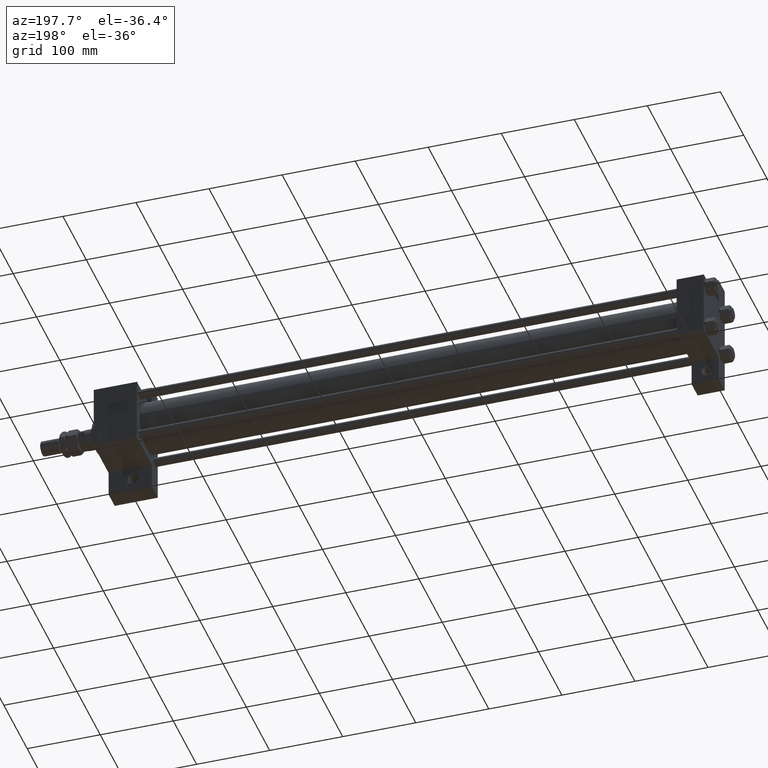
[diagram: clean part render]
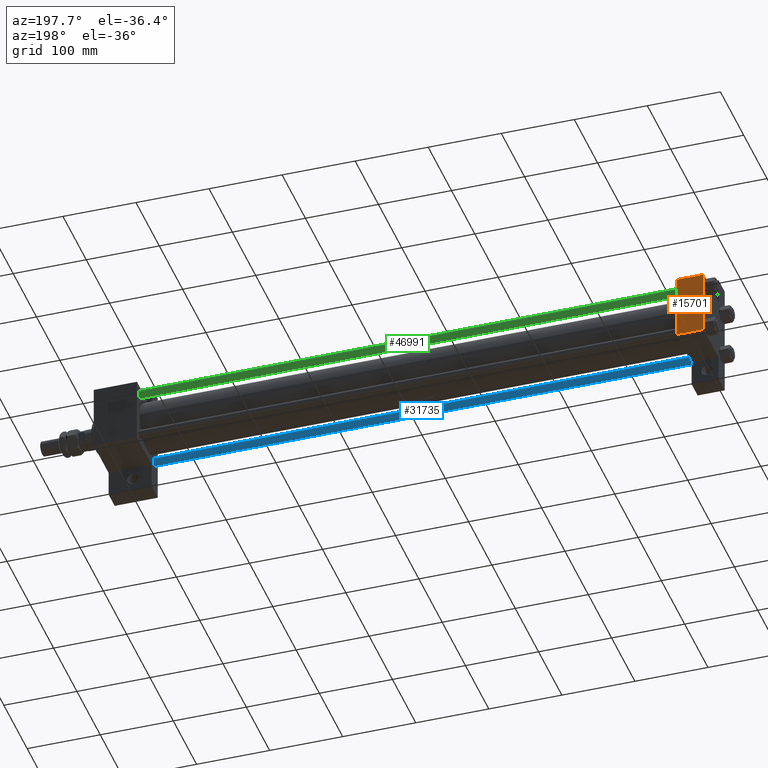
[diagram: same view with three faces highlighted in distinct colors, each labeled with its STEP entity id]
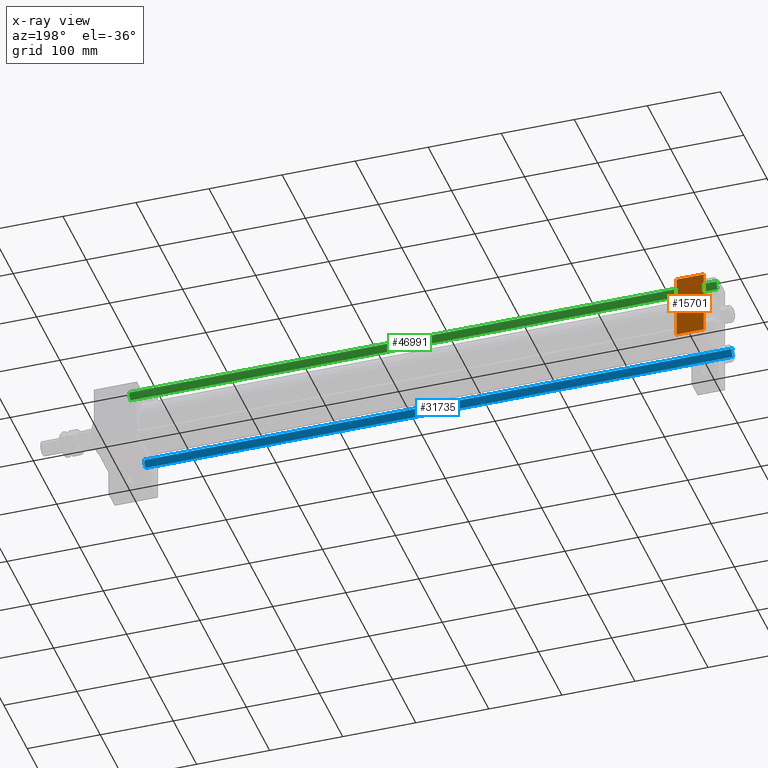
[diagram: x-ray of the same camera — body ghosted, the three highlighted faces saturated]
A machine part, auxiliary view with three faces highlighted in distinct colors.
The next image is the same camera in x-ray (body ghosted, the three faces saturated) — at least one of them is partly hidden behind the body in this view.
Their STEP definitions:

[orange] entity #15701 — the highlighted planar face has unit normal (0, -1, -0).
#525 = ORIENTED_EDGE ( 'NONE', *, *, #26779, .F. ) ;
#561 = CARTESIAN_POINT ( 'NONE',  ( 0.000000000000000000, 44.99999999999998579, 45.00000000000001421 ) ) ;
#1199 = VECTOR ( 'NONE', #39959, 1000.000000000000000 ) ;
#3971 = VERTEX_POINT ( 'NONE', #26371 ) ;
#5765 = FACE_OUTER_BOUND ( 'NONE', #25458, .T. ) ;
#5962 = DIRECTION ( 'NONE',  ( 0.000000000000000000, -1.000000000000000000, -1.541976423090495387E-16 ) ) ;
#7017 = VERTEX_POINT ( 'NONE', #43630 ) ;
#7276 = VERTEX_POINT ( 'NONE', #12644 ) ;
#11467 = ORIENTED_EDGE ( 'NONE', *, *, #21764, .T. ) ;
#12644 = CARTESIAN_POINT ( 'NONE',  ( 37.00000000000000000, 44.49999999999998579, 45.00000000000001421 ) ) ;
#13335 = CARTESIAN_POINT ( 'NONE',  ( 0.000000000000000000, 44.49999999999998579, 45.00000000000001421 ) ) ;
#14403 = VECTOR ( 'NONE', #35823, 1000.000000000000000 ) ;
#14641 = EDGE_CURVE ( 'NONE', #44968, #3971, #32585, .T. ) ;
#15701 = ADVANCED_FACE ( 'NONE', ( #5765 ), #21445, .F. ) ;
#16681 = LINE ( 'NONE', #39294, #14403 ) ;
#18577 = CARTESIAN_POINT ( 'NONE',  ( 37.00000000000000000, 44.99999999999998579, 45.00000000000001421 ) ) ;
#20498 = ORIENTED_EDGE ( 'NONE', *, *, #27665, .T. ) ;
#20819 = LINE ( 'NONE', #13335, #1199 ) ;
#21049 = CARTESIAN_POINT ( 'NONE',  ( 0.000000000000000000, 44.49999999999998579, 45.00000000000001421 ) ) ;
#21445 = PLANE ( 'NONE',  #47584 ) ;
#21764 = EDGE_CURVE ( 'NONE', #3971, #7017, #16681, .T. ) ;
#25177 = DIRECTION ( 'NONE',  ( 0.000000000000000000, 1.000000000000000000, 1.541976423090495633E-16 ) ) ;
#25458 = EDGE_LOOP ( 'NONE', ( #30582, #11467, #525, #20498 ) ) ;
#26371 = CARTESIAN_POINT ( 'NONE',  ( 0.000000000000000000, -44.49999999999995737, 45.00000000000000000 ) ) ;
#26779 = EDGE_CURVE ( 'NONE', #7276, #7017, #48650, .T. ) ;
#27665 = EDGE_CURVE ( 'NONE', #7276, #44968, #20819, .T. ) ;
#28168 = VECTOR ( 'NONE', #33729, 1000.000000000000000 ) ;
#29651 = CARTESIAN_POINT ( 'NONE',  ( 37.00000000000000000, 44.99999999999998579, 45.00000000000001421 ) ) ;
#30582 = ORIENTED_EDGE ( 'NONE', *, *, #14641, .T. ) ;
#31739 = VECTOR ( 'NONE', #5962, 1000.000000000000000 ) ;
#32585 = LINE ( 'NONE', #561, #31739 ) ;
#33729 = DIRECTION ( 'NONE',  ( 0.000000000000000000, -1.000000000000000000, -1.541976423090495387E-16 ) ) ;
#35823 = DIRECTION ( 'NONE',  ( 1.000000000000000000, 0.000000000000000000, 0.000000000000000000 ) ) ;
#39294 = CARTESIAN_POINT ( 'NONE',  ( 37.00000000000000000, -44.49999999999998579, 45.00000000000000000 ) ) ;
#39959 = DIRECTION ( 'NONE',  ( -1.000000000000000000, 0.000000000000000000, 0.000000000000000000 ) ) ;
#43630 = CARTESIAN_POINT ( 'NONE',  ( 37.00000000000000000, -44.49999999999995737, 45.00000000000000000 ) ) ;
#44573 = DIRECTION ( 'NONE',  ( 0.000000000000000000, 1.541976423090495633E-16, -1.000000000000000000 ) ) ;
#44968 = VERTEX_POINT ( 'NONE', #21049 ) ;
#47584 = AXIS2_PLACEMENT_3D ( 'NONE', #29651, #44573, #25177 ) ;
#48650 = LINE ( 'NONE', #18577, #28168 ) ;

[blue] entity #31735 — the highlighted cylindrical surface (edge-blend (fillet) strip) has radius 6 mm, axis along (-1, 0, 0).
#243 = CARTESIAN_POINT ( 'NONE',  ( -6.000000000000000888, 0.000000000000000000, 804.5000000000002274 ) ) ;
#2027 = EDGE_CURVE ( 'NONE', #46826, #39538, #4436, .T. ) ;
#4436 = LINE ( 'NONE', #41119, #33877 ) ;
#5292 = VERTEX_POINT ( 'NONE', #8346 ) ;
#7296 = DIRECTION ( 'NONE',  ( 1.000000000000000000, 0.000000000000000000, 0.000000000000000000 ) ) ;
#8346 = CARTESIAN_POINT ( 'NONE',  ( -6.000000000000000888, 0.000000000000000000, 0.5000000000000559552 ) ) ;
#9506 = EDGE_LOOP ( 'NONE', ( #37271, #43280, #14703, #36634 ) ) ;
#9963 = CARTESIAN_POINT ( 'NONE',  ( 6.000000000000000888, 7.347880794884120722E-16, 0.5000000000000559552 ) ) ;
#9994 = EDGE_CURVE ( 'NONE', #11426, #5292, #13007, .T. ) ;
#11426 = VERTEX_POINT ( 'NONE', #243 ) ;
#11736 = CARTESIAN_POINT ( 'NONE',  ( 0.000000000000000000, 0.000000000000000000, 804.5000000000002274 ) ) ;
#11904 = DIRECTION ( 'NONE',  ( -0.000000000000000000, -0.000000000000000000, -1.000000000000000000 ) ) ;
#13007 = LINE ( 'NONE', #36402, #41147 ) ;
#13596 = DIRECTION ( 'NONE',  ( -1.000000000000000000, 0.000000000000000000, 0.000000000000000000 ) ) ;
#13843 = EDGE_CURVE ( 'NONE', #5292, #39538, #49236, .T. ) ;
#13921 = DIRECTION ( 'NONE',  ( 1.000000000000000000, 0.000000000000000000, 0.000000000000000000 ) ) ;
#14423 = DIRECTION ( 'NONE',  ( -0.000000000000000000, -0.000000000000000000, 1.000000000000000000 ) ) ;
#14703 = ORIENTED_EDGE ( 'NONE', *, *, #9994, .T. ) ;
#17346 = FACE_OUTER_BOUND ( 'NONE', #9506, .T. ) ;
#19245 = DIRECTION ( 'NONE',  ( 0.000000000000000000, 0.000000000000000000, -1.000000000000000000 ) ) ;
#22607 = CARTESIAN_POINT ( 'NONE',  ( 6.000000000000000888, 7.347880794884120722E-16, 804.5000000000002274 ) ) ;
#28608 = AXIS2_PLACEMENT_3D ( 'NONE', #11736, #19245, #7296 ) ;
#31735 = ADVANCED_FACE ( 'NONE', ( #17346 ), #47671, .T. ) ;
#32324 = AXIS2_PLACEMENT_3D ( 'NONE', #32756, #36743, #13596 ) ;
#32756 = CARTESIAN_POINT ( 'NONE',  ( 0.000000000000000000, 0.000000000000000000, 805.0000000000000000 ) ) ;
#33877 = VECTOR ( 'NONE', #11904, 1000.000000000000000 ) ;
#34179 = CIRCLE ( 'NONE', #28608, 6.000000000000000888 ) ;
#36402 = CARTESIAN_POINT ( 'NONE',  ( -6.000000000000000888, 0.000000000000000000, 805.0000000000000000 ) ) ;
#36634 = ORIENTED_EDGE ( 'NONE', *, *, #13843, .T. ) ;
#36743 = DIRECTION ( 'NONE',  ( -0.000000000000000000, -0.000000000000000000, -1.000000000000000000 ) ) ;
#37271 = ORIENTED_EDGE ( 'NONE', *, *, #2027, .F. ) ;
#38881 = AXIS2_PLACEMENT_3D ( 'NONE', #44776, #14423, #13921 ) ;
#39538 = VERTEX_POINT ( 'NONE', #9963 ) ;
#41119 = CARTESIAN_POINT ( 'NONE',  ( 6.000000000000000888, 7.347880794884120722E-16, 805.0000000000000000 ) ) ;
#41147 = VECTOR ( 'NONE', #43868, 1000.000000000000000 ) ;
#42345 = EDGE_CURVE ( 'NONE', #46826, #11426, #34179, .T. ) ;
#43280 = ORIENTED_EDGE ( 'NONE', *, *, #42345, .T. ) ;
#43868 = DIRECTION ( 'NONE',  ( -0.000000000000000000, -0.000000000000000000, -1.000000000000000000 ) ) ;
#44776 = CARTESIAN_POINT ( 'NONE',  ( 0.000000000000000000, 0.000000000000000000, 0.5000000000000559552 ) ) ;
#46826 = VERTEX_POINT ( 'NONE', #22607 ) ;
#47671 = CYLINDRICAL_SURFACE ( 'NONE', #32324, 6.000000000000000888 ) ;
#49236 = CIRCLE ( 'NONE', #38881, 6.000000000000000888 ) ;

[green] entity #46991 — the highlighted cylindrical surface (edge-blend (fillet) strip) has radius 6 mm, axis along (-1, -0, -0).
#243 = CARTESIAN_POINT ( 'NONE',  ( -6.000000000000000888, 0.000000000000000000, 804.5000000000002274 ) ) ;
#2027 = EDGE_CURVE ( 'NONE', #46826, #39538, #4436, .T. ) ;
#2383 = AXIS2_PLACEMENT_3D ( 'NONE', #23562, #7673, #31258 ) ;
#4436 = LINE ( 'NONE', #41119, #33877 ) ;
#5292 = VERTEX_POINT ( 'NONE', #8346 ) ;
#5877 = CARTESIAN_POINT ( 'NONE',  ( 0.000000000000000000, 0.000000000000000000, 805.0000000000000000 ) ) ;
#7673 = DIRECTION ( 'NONE',  ( -0.000000000000000000, -0.000000000000000000, 1.000000000000000000 ) ) ;
#8346 = CARTESIAN_POINT ( 'NONE',  ( -6.000000000000000888, 0.000000000000000000, 0.5000000000000559552 ) ) ;
#9963 = CARTESIAN_POINT ( 'NONE',  ( 6.000000000000000888, 7.347880794884120722E-16, 0.5000000000000559552 ) ) ;
#9994 = EDGE_CURVE ( 'NONE', #11426, #5292, #13007, .T. ) ;
#10942 = ORIENTED_EDGE ( 'NONE', *, *, #2027, .T. ) ;
#11426 = VERTEX_POINT ( 'NONE', #243 ) ;
#11904 = DIRECTION ( 'NONE',  ( -0.000000000000000000, -0.000000000000000000, -1.000000000000000000 ) ) ;
#13007 = LINE ( 'NONE', #36402, #41147 ) ;
#15585 = EDGE_CURVE ( 'NONE', #11426, #46826, #23071, .T. ) ;
#19486 = EDGE_CURVE ( 'NONE', #39538, #5292, #19905, .T. ) ;
#19905 = CIRCLE ( 'NONE', #2383, 6.000000000000000888 ) ;
#20821 = CYLINDRICAL_SURFACE ( 'NONE', #47798, 6.000000000000000888 ) ;
#22607 = CARTESIAN_POINT ( 'NONE',  ( 6.000000000000000888, 7.347880794884120722E-16, 804.5000000000002274 ) ) ;
#23071 = CIRCLE ( 'NONE', #47695, 6.000000000000000888 ) ;
#23562 = CARTESIAN_POINT ( 'NONE',  ( 0.000000000000000000, 0.000000000000000000, 0.5000000000000559552 ) ) ;
#25294 = DIRECTION ( 'NONE',  ( -0.000000000000000000, -0.000000000000000000, -1.000000000000000000 ) ) ;
#28919 = EDGE_LOOP ( 'NONE', ( #43990, #10942, #40621, #48052 ) ) ;
#31258 = DIRECTION ( 'NONE',  ( 1.000000000000000000, 0.000000000000000000, 0.000000000000000000 ) ) ;
#32496 = DIRECTION ( 'NONE',  ( -1.000000000000000000, 0.000000000000000000, 0.000000000000000000 ) ) ;
#33877 = VECTOR ( 'NONE', #11904, 1000.000000000000000 ) ;
#34234 = CARTESIAN_POINT ( 'NONE',  ( 0.000000000000000000, 0.000000000000000000, 804.5000000000002274 ) ) ;
#36402 = CARTESIAN_POINT ( 'NONE',  ( -6.000000000000000888, 0.000000000000000000, 805.0000000000000000 ) ) ;
#36981 = DIRECTION ( 'NONE',  ( 0.000000000000000000, 0.000000000000000000, -1.000000000000000000 ) ) ;
#39538 = VERTEX_POINT ( 'NONE', #9963 ) ;
#39961 = FACE_OUTER_BOUND ( 'NONE', #28919, .T. ) ;
#40621 = ORIENTED_EDGE ( 'NONE', *, *, #19486, .T. ) ;
#41119 = CARTESIAN_POINT ( 'NONE',  ( 6.000000000000000888, 7.347880794884120722E-16, 805.0000000000000000 ) ) ;
#41147 = VECTOR ( 'NONE', #43868, 1000.000000000000000 ) ;
#43868 = DIRECTION ( 'NONE',  ( -0.000000000000000000, -0.000000000000000000, -1.000000000000000000 ) ) ;
#43990 = ORIENTED_EDGE ( 'NONE', *, *, #15585, .T. ) ;
#46826 = VERTEX_POINT ( 'NONE', #22607 ) ;
#46991 = ADVANCED_FACE ( 'NONE', ( #39961 ), #20821, .T. ) ;
#47695 = AXIS2_PLACEMENT_3D ( 'NONE', #34234, #36981, #49158 ) ;
#47798 = AXIS2_PLACEMENT_3D ( 'NONE', #5877, #25294, #32496 ) ;
#48052 = ORIENTED_EDGE ( 'NONE', *, *, #9994, .F. ) ;
#49158 = DIRECTION ( 'NONE',  ( 1.000000000000000000, 0.000000000000000000, 0.000000000000000000 ) ) ;